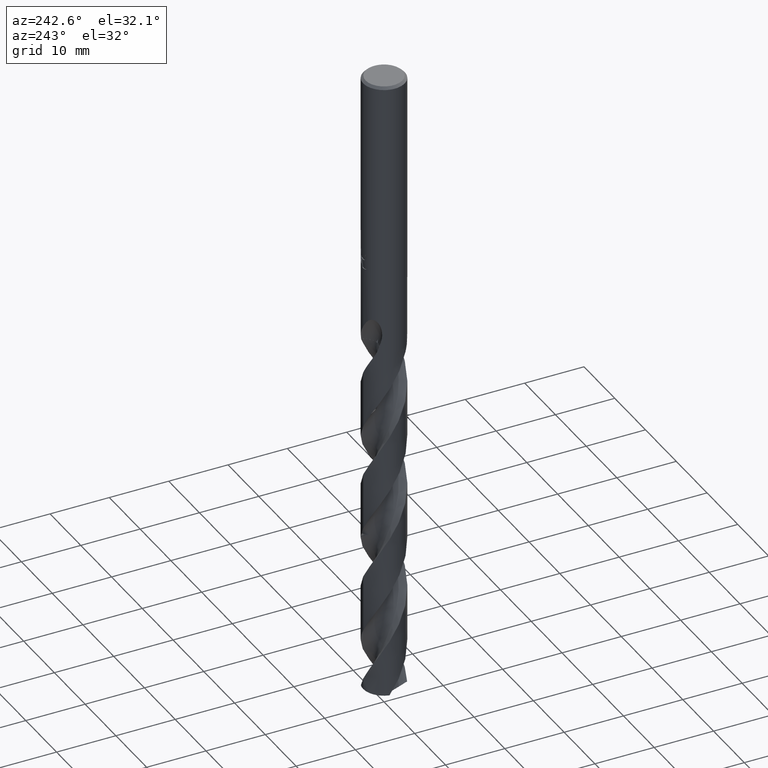
[diagram: clean part render]
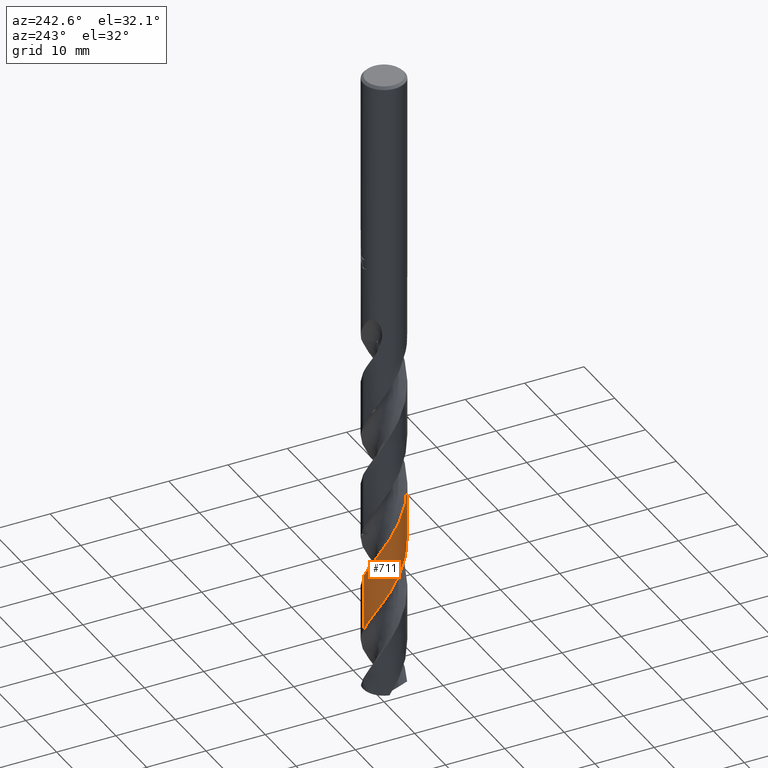
[diagram: same view with one face highlighted and labeled with its STEP entity id]
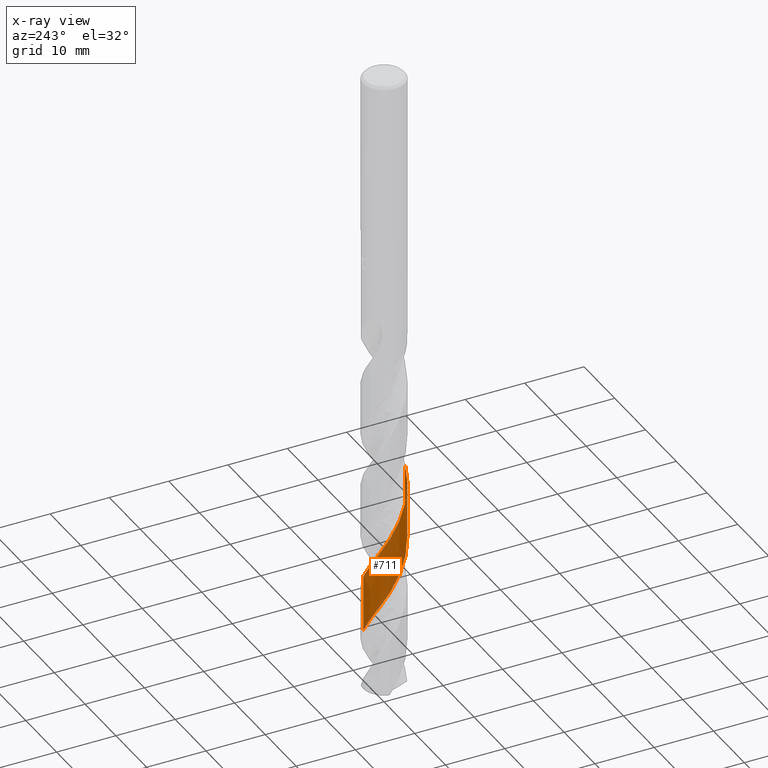
[diagram: x-ray of the same camera — body ghosted, the highlighted face saturated]
A machine part, auxiliary view. The second image highlights one B-rep face of the part: STEP entity #711.
The next image is the same camera in x-ray: the body ghosted, the highlighted face saturated — about 0% of this face is hidden behind the body in this view.
In plain terms, the highlighted conical surface has half-angle 0 deg.
Its self-contained STEP definition (entity closure, byte-faithful):
#299=VERTEX_POINT('',#802);
#345=VERTEX_POINT('',#852);
#393=VERTEX_POINT('',#905);
#415=VERTEX_POINT('',#928);
#501=EDGE_CURVE('',#393,#345,#1019,.T.);
#641=EDGE_CURVE('',#299,#393,#1173,.T.);
#677=EDGE_CURVE('',#415,#299,#1212,.T.);
#711=ADVANCED_FACE('',(#1248),#1249,.T.);
#751=EDGE_CURVE('',#345,#415,#1294,.T.);
#802=CARTESIAN_POINT('',(-7.40526495764295E-013,-3.49995292986779,-78.9526619385507));
#852=CARTESIAN_POINT('',(-1.13165313051398E-014,3.49996705519628,-87.4798293892618));
#905=CARTESIAN_POINT('',(-6.94785308113293E-013,-3.49993719329914,-69.4528222599181));
#928=CARTESIAN_POINT('',(-1.70896919966986E-014,3.49998279099656,-96.9792052148506));
#1019=B_SPLINE_CURVE_WITH_KNOTS('',3,(#3660,#3661,#3662,#3663,#3664,#3665,#3666,#3667,#3668,#3669,#3670,#3671,#3672,#3673,#3674,#3675,#3676,#3677,#3678,#3679,#3680,#3681,#3682,#3683,#3684,#3685,#3686,#3687,#3688,#3689,#3690,#3691,#3692,#3693,#3694,#3695,#3696,#3697,#3698,#3699,#3700,#3701,#3702,#3703,#3704,#3705,#3706,#3707,#3708,#3709,#3710,#3711,#3712,#3713,#3714,#3715,#3716,#3717,#3718,#3719,#3720,#3721,#3722,#3723,#3724,#3725,#3726,#3727,#3728,#3729,#3730,#3731,#3732,#3733,#3734,#3735,#3736,#3737,#3738,#3739,#3740,#3741,#3742,#3743,#3744,#3745,#3746,#3747,#3748,#3749,#3750,#3751,#3752,#3753,#3754,#3755,#3756,#3757,#3758,#3759,#3760,#3761,#3762,#3763,#3764,#3765,#3766,#3767,#3768,#3769,#3770,#3771,#3772,#3773,#3774,#3775,#3776,#3777,#3778,#3779,#3780,#3781,#3782,#3783,#3784,#3785,#3786,#3787,#3788,#3789,#3790,#3791,#3792,#3793,#3794,#3795,#3796,#3797,#3798,#3799,#3800,#3801,#3802,#3803,#3804,#3805,#3806,#3807,#3808,#3809,#3810,#3811,#3812,#3813,#3814,#3815,#3816,#3817,#3818,#3819),.UNSPECIFIED.,.F.,.F.,(4,2,2,2,2,2,2,2,2,2,2,2,2,2,2,2,2,2,2,2,2,2,2,2,2,2,2,2,2,2,2,2,2,2,2,2,2,2,2,2,2,2,2,2,2,2,2,2,2,2,2,2,2,2,2,2,2,2,2,2,2,2,2,2,2,2,2,2,2,2,2,2,2,2,2,2,2,2,2,4),(0.0,0.176609316957162,0.265826449095525,0.287732094775961,0.295246023859424,0.297832388771136,0.748636260234133,0.850870348794659,0.906132694335891,0.952146596698889,1.00624080437429,1.10313529965433,1.24015239958164,1.8390544293249,2.23477341737748,2.91002897189935,3.95445716626407,4.90334203578638,6.56132611102956,6.86253939397317,7.95088236907743,8.50504028353946,9.18887822470825,10.2735750849254,10.8875113506585,11.5008710652023,12.8761996900154,14.1562507725252,15.3644091370383,15.9466348982096,17.3195595338461,18.5995675120316,19.8077483179398,20.3898289084587,21.7752115068588,22.5443483954074,23.6950434977329,24.9099583517567,26.456509972061,27.0450889833506,28.4193197987341,29.6987878558288,30.906727307598,31.4867359319988,32.861120073602,34.1403219908385,35.3481647096555,35.9286423653618,37.3156850023539,38.0812130531543,39.2330383672182,40.4471828044986,41.9965769960484,42.5820560976831,43.9593531619333,44.7397702126562,46.0134690650328,47.018507663538,48.3919631397232,49.6705130925328,50.8776111264067,51.4584760410521,52.8436841585541,53.610651662213,54.7633284493473,55.9765861839157,57.5294332465751,58.1112609126017,59.4908166449692,60.265363984071,61.5406964547693,62.4820838938612,63.6294736531188,65.0067055816141,66.0386577240808,66.4284552027329,66.7670302553421,67.9606912834661,68.5588105373169,69.1564998714004),.UNSPECIFIED.);
#1173=LINE('',#7154,#7155);
#1212=B_SPLINE_CURVE_WITH_KNOTS('',3,(#7800,#7801,#7802,#7803,#7804,#7805,#7806,#7807,#7808,#7809,#7810,#7811,#7812,#7813,#7814,#7815,#7816,#7817,#7818,#7819,#7820,#7821,#7822,#7823,#7824,#7825,#7826,#7827,#7828,#7829,#7830,#7831,#7832,#7833,#7834,#7835,#7836,#7837,#7838,#7839,#7840,#7841,#7842,#7843,#7844,#7845,#7846,#7847,#7848,#7849,#7850,#7851,#7852,#7853,#7854,#7855,#7856,#7857,#7858,#7859,#7860,#7861,#7862,#7863,#7864,#7865,#7866,#7867,#7868,#7869,#7870,#7871,#7872,#7873,#7874,#7875,#7876,#7877,#7878,#7879,#7880,#7881,#7882,#7883,#7884,#7885,#7886,#7887,#7888,#7889,#7890,#7891,#7892,#7893,#7894,#7895,#7896,#7897,#7898,#7899,#7900,#7901,#7902,#7903,#7904,#7905,#7906,#7907,#7908,#7909,#7910,#7911,#7912,#7913,#7914,#7915,#7916,#7917,#7918,#7919,#7920,#7921,#7922,#7923,#7924,#7925,#7926,#7927,#7928,#7929,#7930,#7931,#7932,#7933,#7934,#7935,#7936,#7937,#7938,#7939,#7940,#7941,#7942,#7943,#7944,#7945,#7946,#7947,#7948,#7949,#7950,#7951,#7952,#7953,#7954,#7955,#7956,#7957,#7958,#7959),.UNSPECIFIED.,.F.,.F.,(4,2,2,2,2,2,2,2,2,2,2,2,2,2,2,2,2,2,2,2,2,2,2,2,2,2,2,2,2,2,2,2,2,2,2,2,2,2,2,2,2,2,2,2,2,2,2,2,2,2,2,2,2,2,2,2,2,2,2,2,2,2,2,2,2,2,2,2,2,2,2,2,2,2,2,2,2,2,2,4),(0.0,1.07297477616406,2.06550706622629,2.99060471057518,4.07755392860636,4.57572591207342,5.08493819379805,6.3493469404932,6.85291868082329,7.36150307210415,8.61578232791794,9.1838712705761,9.66967033047083,10.897758883202,11.4661827206003,11.8722335209645,13.0137118486045,13.5672330832487,14.692723902993,15.7313889931295,16.8461279105255,17.9748675286975,19.0859248474266,20.2140851764052,21.2904833798785,22.4171898578372,23.4622180488547,24.4419215006319,24.9900358818374,26.0705829016986,27.2037418258995,28.3242688896975,29.4554798806933,30.324832423727,31.6336796244901,32.5497885149773,34.4738231940705,34.6315123102163,36.8074749238068,36.9542742226299,39.1082952184604,39.2546689706105,41.4155157245676,41.4862538052461,43.4445764033497,43.9472462340155,45.0774984925308,45.6485749997113,46.7321982254105,47.8403008509796,48.9592979340731,50.0919140714858,50.9540812142249,52.1604653983318,52.6431117868114,53.027771926906,54.1648913279685,54.7369880898384,55.855084130908,56.990642222901,58.111319783219,59.2460194138756,60.3693931883418,61.5038727860214,62.6081083348537,64.0419435092109,64.7280627482917,66.1907139131353,66.9756270845256,68.4902848137052,69.3452126537487,69.6635704467222,69.9654451049739,70.1298565927482,70.2234114604124,70.3092630549788,70.4212259947623,70.6602536849387,70.9851925573652,71.51794366539),.UNSPECIFIED.);
#1248=FACE_OUTER_BOUND('',#8017,.T.);
#1249=CONICAL_SURFACE('',#8018,3.49995,1.65650886605269E-006);
#1294=LINE('',#8562,#8563);
#3660=CARTESIAN_POINT('',(-2.43269998356806,2.51620167274488,-47.005));
#3661=CARTESIAN_POINT('',(-2.41175347687883,2.53645317468293,-47.0561543802589));
#3662=CARTESIAN_POINT('',(-2.39047482509686,2.55652070581399,-47.1073909388611));
#3663=CARTESIAN_POINT('',(-2.35785386554595,2.58651280433652,-47.1844360545406));
#3664=CARTESIAN_POINT('',(-2.34681818972322,2.59653054929769,-47.2102522743538));
#3665=CARTESIAN_POINT('',(-2.33293330267143,2.60897269699269,-47.2423965885668));
#3666=CARTESIAN_POINT('',(-2.33019013892071,2.61142305365317,-47.24873103283));
#3667=CARTESIAN_POINT('',(-2.32649738138319,2.61471117371272,-47.2572362359017));
#3668=CARTESIAN_POINT('',(-2.32555349705209,2.61555071581357,-47.2594082770913));
#3669=CARTESIAN_POINT('',(-2.32428371145247,2.61667890074603,-47.2623276737815));
#3670=CARTESIAN_POINT('',(-2.3239584720212,2.616967762507,-47.2630752111538));
#3671=CARTESIAN_POINT('',(-2.26692843877424,2.66760002969327,-47.3941140750664));
#3672=CARTESIAN_POINT('',(-2.20912034699077,2.71574293485956,-47.519844829413));
#3673=CARTESIAN_POINT('',(-2.13304393886631,2.77484207642796,-47.6768906580471));
#3674=CARTESIAN_POINT('',(-2.11886076571277,2.78568817989498,-47.7058459460353));
#3675=CARTESIAN_POINT('',(-2.09679386022125,2.80229515315963,-47.7504481469319));
#3676=CARTESIAN_POINT('',(-2.08901674080607,2.80809764980555,-47.7660834238604));
#3677=CARTESIAN_POINT('',(-2.07469638816977,2.81868934289746,-47.7947307043134));
#3678=CARTESIAN_POINT('',(-2.06816739664195,2.82348344273392,-47.8077379843248));
#3679=CARTESIAN_POINT('',(-2.05391097159921,2.83387549175227,-47.8360318718216));
#3680=CARTESIAN_POINT('',(-2.04617811527693,2.83946407140733,-47.8513102917898));
#3681=CARTESIAN_POINT('',(-2.02450869813871,2.85498993938282,-47.893952431549));
#3682=CARTESIAN_POINT('',(-2.01052000141599,2.8648583841502,-47.9212830625568));
#3683=CARTESIAN_POINT('',(-1.97654844571432,2.88845195267198,-47.9872868857329));
#3684=CARTESIAN_POINT('',(-1.95665480739979,2.90196895136061,-48.0257169155291));
#3685=CARTESIAN_POINT('',(-1.8461528442374,2.97534655074654,-48.2386477456232));
#3686=CARTESIAN_POINT('',(-1.75409397108904,3.03047963886713,-48.4132887175796));
#3687=CARTESIAN_POINT('',(-1.5984373962573,3.11436458080042,-48.7027972766793));
#3688=CARTESIAN_POINT('',(-1.5355944543861,3.14582173466202,-48.8181984437904));
#3689=CARTESIAN_POINT('',(-1.36330162140425,3.22568907935567,-49.130291624133));
#3690=CARTESIAN_POINT('',(-1.25213737201075,3.27044814935813,-49.327226953951));
#3691=CARTESIAN_POINT('',(-0.963644595261508,3.36972652324523,-49.8282486361788));
#3692=CARTESIAN_POINT('',(-0.783862308587323,3.41604184972635,-50.1307229178127));
#3693=CARTESIAN_POINT('',(-0.434911295720396,3.47687029648022,-50.7107712415498));
#3694=CARTESIAN_POINT('',(-0.267091563460321,3.49375465985021,-50.987098536721));
#3695=CARTESIAN_POINT('',(0.194999250528401,3.50681795344031,-51.7459933602395));
#3696=CARTESIAN_POINT('',(0.488883827752617,3.47806849146037,-52.2253167199682));
#3697=CARTESIAN_POINT('',(0.827988050650087,3.40097949418845,-52.7953930811924));
#3698=CARTESIAN_POINT('',(0.879829813884741,3.38793793300842,-52.8830270256743));
#3699=CARTESIAN_POINT('',(1.11746546149402,3.32233739376537,-53.2874419157705));
#3700=CARTESIAN_POINT('',(1.29906388426685,3.25562945906313,-53.6039661912791));
#3701=CARTESIAN_POINT('',(1.56346273212086,3.13283263636992,-54.0819593764143));
#3702=CARTESIAN_POINT('',(1.65090514305436,3.08764969791146,-54.243118818409));
#3703=CARTESIAN_POINT('',(1.84179057308766,2.97858070576308,-54.6033197904873));
#3704=CARTESIAN_POINT('',(1.94398600336964,2.91290914494796,-54.8020013786641));
#3705=CARTESIAN_POINT('',(2.19887611716496,2.72972579507364,-55.3167258019103));
#3706=CARTESIAN_POINT('',(2.34569466507415,2.60464902193666,-55.6321778649721));
#3707=CARTESIAN_POINT('',(2.55834717381075,2.39084592847523,-56.1265488297567));
#3708=CARTESIAN_POINT('',(2.63156874303276,2.31000898387067,-56.3050858648868));
#3709=CARTESIAN_POINT('',(2.77018609017299,2.14180914293974,-56.6622258641046));
#3710=CARTESIAN_POINT('',(2.83547210122525,2.05459495604475,-56.8405721113634));
#3711=CARTESIAN_POINT('',(3.03356947261061,1.76251208808823,-57.4194713650773));
#3712=CARTESIAN_POINT('',(3.14911918946605,1.5466531997457,-57.8189758221854));
#3713=CARTESIAN_POINT('',(3.32704366514641,1.10990863247953,-58.591769932708));
#3714=CARTESIAN_POINT('',(3.39206533446229,0.8915914642033,-58.9634480112951));
#3715=CARTESIAN_POINT('',(3.47642245029734,0.458152972679807,-59.6878084857337));
#3716=CARTESIAN_POINT('',(3.49797386794858,0.244289700186688,-60.0386465226703));
#3717=CARTESIAN_POINT('',(3.50067421331958,-0.0736973609765746,-60.5596819263423));
#3718=CARTESIAN_POINT('',(3.49696876821771,-0.177050130840127,-60.729010963468));
#3719=CARTESIAN_POINT('',(3.46920334901063,-0.522942753907589,-61.2981920360522));
#3720=CARTESIAN_POINT('',(3.42438503771326,-0.763230611072699,-61.6970352235357));
#3721=CARTESIAN_POINT('',(3.29016174024695,-1.21490829654455,-62.4691828710359));
#3722=CARTESIAN_POINT('',(3.20434348659599,-1.42592929911881,-62.8408838705583));
#3723=CARTESIAN_POINT('',(2.9990516863863,-1.8169093324836,-63.565301780019));
#3724=CARTESIAN_POINT('',(2.88209190737557,-1.99727277028515,-63.9161768815367));
#3725=CARTESIAN_POINT('',(2.68530489932635,-2.24707144828725,-64.4372216047361));
#3726=CARTESIAN_POINT('',(2.61778137058986,-2.32538155328725,-64.6065249587007));
#3727=CARTESIAN_POINT('',(2.37825647337112,-2.57951048337814,-65.1793375921104));
#3728=CARTESIAN_POINT('',(2.19113585412008,-2.74025516722603,-65.5818025227725));
#3729=CARTESIAN_POINT('',(1.87620498909565,-2.95770915618335,-66.208931247108));
#3730=CARTESIAN_POINT('',(1.75937016414794,-3.02866077855063,-66.4324493374421));
#3731=CARTESIAN_POINT('',(1.45821291201453,-3.18824052392186,-66.9914355000141));
#3732=CARTESIAN_POINT('',(1.26963202704695,-3.26792589460329,-67.326107362255));
#3733=CARTESIAN_POINT('',(0.869789921815956,-3.39699440378423,-68.0148130119236));
#3734=CARTESIAN_POINT('',(0.658813426519814,-3.4441292076808,-68.3673274345739));
#3735=CARTESIAN_POINT('',(0.172579473048913,-3.50644353415302,-69.17147583139));
#3736=CARTESIAN_POINT('',(-0.103021814856283,-3.50919531975958,-69.6203580061644));
#3737=CARTESIAN_POINT('',(-0.48017578375058,-3.46841986782462,-70.2419258288089));
#3738=CARTESIAN_POINT('',(-0.583544394335541,-3.45253052886276,-70.4131529751583));
#3739=CARTESIAN_POINT('',(-0.925264401788666,-3.3842268495533,-70.9847512914819));
#3740=CARTESIAN_POINT('',(-1.15895592060618,-3.3114981864795,-71.3841023645794));
#3741=CARTESIAN_POINT('',(-1.59206304091504,-3.12515677350633,-72.1567254612999));
#3742=CARTESIAN_POINT('',(-1.79155863408711,-3.0152136787304,-72.5283921645052));
#3743=CARTESIAN_POINT('',(-2.15580461797082,-2.76552031464065,-73.2528159513011));
#3744=CARTESIAN_POINT('',(-2.32124456730254,-2.62821255952877,-73.6037312560034));
#3745=CARTESIAN_POINT('',(-2.54604708199659,-2.40372218502797,-74.1242707932152));
#3746=CARTESIAN_POINT('',(-2.61569014057088,-2.32774296651161,-74.2930261159941));
#3747=CARTESIAN_POINT('',(-2.83865937496481,-2.06184067873635,-74.8622191740045));
#3748=CARTESIAN_POINT('',(-2.97553452622568,-1.85888724164996,-75.2616442740125));
#3749=CARTESIAN_POINT('',(-3.19691615639314,-1.44257718827464,-76.0342966390264));
#3750=CARTESIAN_POINT('',(-3.28379319873845,-1.23204259548018,-76.4059200977482));
#3751=CARTESIAN_POINT('',(-3.41181300030688,-0.809427188214244,-77.1303003888474));
#3752=CARTESIAN_POINT('',(-3.45501660567954,-0.598817311861795,-77.4812185804774));
#3753=CARTESIAN_POINT('',(-3.49001884706417,-0.282963315283491,-78.0019109634153));
#3754=CARTESIAN_POINT('',(-3.49683789948652,-0.180029678718117,-78.1708188401937));
#3755=CARTESIAN_POINT('',(-3.50452307558494,0.169258254266956,-78.7438820514907));
#3756=CARTESIAN_POINT('',(-3.48393479741709,0.415482676734702,-79.1469883629072));
#3757=CARTESIAN_POINT('',(-3.41206661856233,0.791193949050992,-79.7738048253917));
#3758=CARTESIAN_POINT('',(-3.37874921012454,0.923158315091427,-79.9963679720614));
#3759=CARTESIAN_POINT('',(-3.27631675796848,1.24791222662192,-80.5548598019763));
#3760=CARTESIAN_POINT('',(-3.19777910596635,1.43728501205592,-80.8899943899089));
#3761=CARTESIAN_POINT('',(-3.00334520185092,1.81001660870528,-81.5790843986515));
#3762=CARTESIAN_POINT('',(-2.88612733687239,1.9915990673702,-81.9315206839968));
#3763=CARTESIAN_POINT('',(-2.58307399976971,2.37763660252326,-82.7366003202335));
#3764=CARTESIAN_POINT('',(-2.38815489366422,2.57337896130752,-83.1864788486121));
#3765=CARTESIAN_POINT('',(-2.09062055482682,2.80888985673244,-83.8082242717237));
#3766=CARTESIAN_POINT('',(-2.00621735009745,2.86977951715802,-83.9786222174934));
#3767=CARTESIAN_POINT('',(-1.71469156372962,3.06094929616485,-84.550442904971));
#3768=CARTESIAN_POINT('',(-1.49654022797196,3.17333256784199,-84.9508385629269));
#3769=CARTESIAN_POINT('',(-1.13908378181983,3.31232212307518,-85.5793096986341));
#3770=CARTESIAN_POINT('',(-1.00696812438172,3.35484506213587,-85.806245107761));
#3771=CARTESIAN_POINT('',(-0.653591359405398,3.44583393580127,-86.4047203656042));
#3772=CARTESIAN_POINT('',(-0.429444875220092,3.48088988992265,-86.7752528348976));
#3773=CARTESIAN_POINT('',(-0.0250874268026469,3.50443337339035,-87.4390745540273));
#3774=CARTESIAN_POINT('',(0.153729059618635,3.50114530077826,-87.7311198558711));
#3775=CARTESIAN_POINT('',(0.574371927606005,3.46112860129982,-88.4241905961481));
#3776=CARTESIAN_POINT('',(0.814288221301899,3.41267378887534,-88.8235556757133));
#3777=CARTESIAN_POINT('',(1.26416916770178,3.2715956072034,-89.5961529782406));
#3778=CARTESIAN_POINT('',(1.47383867586516,3.18263816972693,-89.9677805154407));
#3779=CARTESIAN_POINT('',(1.86166989748613,2.97152736410667,-90.6921344986138));
#3780=CARTESIAN_POINT('',(2.04026913526751,2.85187186914525,-91.0430216884848));
#3781=CARTESIAN_POINT('',(2.28700626770797,2.65143072856439,-91.5638836065827));
#3782=CARTESIAN_POINT('',(2.36421030594268,2.58282371878614,-91.7329922222691));
#3783=CARTESIAN_POINT('',(2.61480442776378,2.33948485363641,-92.3059351598779));
#3784=CARTESIAN_POINT('',(2.77285955482456,2.14982286346735,-92.7087231337911));
#3785=CARTESIAN_POINT('',(2.98551665052056,1.83169960099087,-93.3357547002153));
#3786=CARTESIAN_POINT('',(3.05458406386631,1.71403916951257,-93.5588523772368));
#3787=CARTESIAN_POINT('',(3.20981011334744,1.41029046692188,-94.1183055957767));
#3788=CARTESIAN_POINT('',(3.28685129789632,1.22002134052361,-94.4538621362709));
#3789=CARTESIAN_POINT('',(3.40992116722374,0.817813675418418,-95.1433034391577));
#3790=CARTESIAN_POINT('',(3.45381250961202,0.606230837749205,-95.4956695063974));
#3791=CARTESIAN_POINT('',(3.50886312964144,0.117825053867551,-96.3019202624762));
#3792=CARTESIAN_POINT('',(3.50724993125119,-0.159178351391461,-96.7530239159992));
#3793=CARTESIAN_POINT('',(3.46026213681927,-0.535888517806687,-97.3750376639619));
#3794=CARTESIAN_POINT('',(3.44291386901985,-0.637903371443929,-97.5444657145041));
#3795=CARTESIAN_POINT('',(3.36932339393348,-0.978598279838438,-98.1161802851572));
#3796=CARTESIAN_POINT('',(3.29250617871425,-1.21222663614502,-98.5174346840844));
#3797=CARTESIAN_POINT('',(3.13533371368841,-1.5615893660643,-99.1451811978874));
#3798=CARTESIAN_POINT('',(3.07147358137449,-1.68371896277323,-99.3705316952438));
#3799=CARTESIAN_POINT('',(2.88391569321246,-1.99607778504511,-99.9680853405643));
#3800=CARTESIAN_POINT('',(2.74858427582339,-2.1786795508758,-100.339284876803));
#3801=CARTESIAN_POINT('',(2.48423477112272,-2.47113989736015,-100.985379467631));
#3802=CARTESIAN_POINT('',(2.36323921710751,-2.58708940736601,-101.25911951593));
#3803=CARTESIAN_POINT('',(2.07745681816972,-2.82412953172364,-101.868071525729));
#3804=CARTESIAN_POINT('',(1.90934845064633,-2.94040258905455,-102.20220434127));
#3805=CARTESIAN_POINT('',(1.51919282876011,-3.16259282367821,-102.938133029395));
#3806=CARTESIAN_POINT('',(1.29429190046658,-3.26108493602411,-103.338071905844));
#3807=CARTESIAN_POINT('',(0.886263841774338,-3.39089009221512,-104.040545970038));
#3808=CARTESIAN_POINT('',(0.707324348544699,-3.43268756702281,-104.341033094555));
#3809=CARTESIAN_POINT('',(0.457327311410318,-3.47068117509209,-104.755482877458));
#3810=CARTESIAN_POINT('',(0.388486423540657,-3.47905982492451,-104.869071275173));
#3811=CARTESIAN_POINT('',(0.259460290771765,-3.49088544749067,-105.081383572641));
#3812=CARTESIAN_POINT('',(0.199365170793884,-3.49483235750157,-105.180033511251));
#3813=CARTESIAN_POINT('',(-0.0728948054629866,-3.50567019753704,-105.626750862683));
#3814=CARTESIAN_POINT('',(-0.285373596552007,-3.49480167323034,-105.974376631684));
#3815=CARTESIAN_POINT('',(-0.600918004730843,-3.44966801777981,-106.496729237955));
#3816=CARTESIAN_POINT('',(-0.705520937335739,-3.42980458013343,-106.670954913798));
#3817=CARTESIAN_POINT('',(-0.91254125391921,-3.38061761735309,-107.019531803393));
#3818=CARTESIAN_POINT('',(-1.01475682806621,-3.35135042177822,-107.193573439807));
#3819=CARTESIAN_POINT('',(-1.11544004535042,-3.31749807915975,-107.367923196458));
#7154=CARTESIAN_POINT('',(4.28612172425868E-016,-3.49995,-77.1839615982288));
#7155=VECTOR('',#8984,1.0);
#7800=CARTESIAN_POINT('',(3.4004612664133,-0.828772089070842,-107.367923196458));
#7801=CARTESIAN_POINT('',(3.44451882057282,-0.648001308628571,-107.062472239852));
#7802=CARTESIAN_POINT('',(3.47410183399226,-0.464085840985926,-106.75534875078));
#7803=CARTESIAN_POINT('',(3.5026330290207,-0.106285966835573,-106.166707198659));
#7804=CARTESIAN_POINT('',(3.5036204151878,0.0664797805284095,-105.885077141134));
#7805=CARTESIAN_POINT('',(3.48087740267322,0.399187817059056,-105.338797540397));
#7806=CARTESIAN_POINT('',(3.45886909629401,0.558566806062133,-105.074417316504));
#7807=CARTESIAN_POINT('',(3.38742338475055,0.900525135045183,-104.501309641534));
#7808=CARTESIAN_POINT('',(3.33392043576363,1.08197721682228,-104.193210854177));
#7809=CARTESIAN_POINT('',(3.23480094331171,1.33922651830633,-103.742069252371));
#7810=CARTESIAN_POINT('',(3.20069227606294,1.41880209094822,-103.600377402351));
#7811=CARTESIAN_POINT('',(3.12592051264341,1.57682687321303,-103.313431755892));
#7812=CARTESIAN_POINT('',(3.08517500040249,1.65511919080785,-103.168060630079));
#7813=CARTESIAN_POINT('',(2.93323457162708,1.92197968973369,-102.663277776144));
#7814=CARTESIAN_POINT('',(2.80715982521874,2.10190709012381,-102.305833915675));
#7815=CARTESIAN_POINT('',(2.6081001280541,2.33567922029264,-101.803378997326));
#7816=CARTESIAN_POINT('',(2.54898634247433,2.40004548513313,-101.660367311882));
#7817=CARTESIAN_POINT('',(2.4255959408881,2.52471445374199,-101.372488366932));
#7818=CARTESIAN_POINT('',(2.36134913204559,2.58489715728896,-101.227516232373));
#7819=CARTESIAN_POINT('',(2.13119223548619,2.78477719348663,-100.726506952483));
#7820=CARTESIAN_POINT('',(1.95435218267603,2.91165710951823,-100.372363266445));
#7821=CARTESIAN_POINT('',(1.68150628721262,3.07118164900762,-99.8551631784905));
#7822=CARTESIAN_POINT('',(1.59449582592083,3.11723481942914,-99.6940858858754));
#7823=CARTESIAN_POINT('',(1.42990887218793,3.19567386183489,-99.3947067165167));
#7824=CARTESIAN_POINT('',(1.35287492599377,3.2290378493247,-99.2564257991139));
#7825=CARTESIAN_POINT('',(1.07699339814689,3.3369207446532,-98.7697070428363));
#7826=CARTESIAN_POINT('',(0.872439406785284,3.39618172874603,-98.4231354082738));
#7827=CARTESIAN_POINT('',(0.566718194339531,3.45520282598046,-97.9136150070351));
#7828=CARTESIAN_POINT('',(0.469363806696207,3.46976118973943,-97.7525500061294));
#7829=CARTESIAN_POINT('',(0.301851021945437,3.48764948208077,-97.4759113690049));
#7830=CARTESIAN_POINT('',(0.231950650824635,3.49299140283572,-97.3604496649329));
#7831=CARTESIAN_POINT('',(-0.0347109641638858,3.50534524225633,-96.9215476998329));
#7832=CARTESIAN_POINT('',(-0.232140440156735,3.49786043128968,-96.5995714146548));
#7833=CARTESIAN_POINT('',(-0.523339734645339,3.46195977534415,-96.1195782149224));
#7834=CARTESIAN_POINT('',(-0.617833880104701,3.44634572848994,-95.9629866172683));
#7835=CARTESIAN_POINT('',(-0.9019275813959,3.38736153669094,-95.4872273459255));
#7836=CARTESIAN_POINT('',(-1.08874643390349,3.33202653397519,-95.1670362012916));
#7837=CARTESIAN_POINT('',(-1.43761607221353,3.19615376249387,-94.5537619837899));
#7838=CARTESIAN_POINT('',(-1.59975663317443,3.11815634507125,-94.260713668643));
#7839=CARTESIAN_POINT('',(-1.92198532788695,2.93137955356626,-93.6504985123775));
#7840=CARTESIAN_POINT('',(-2.08036018387744,2.82118401450093,-93.3333571225514));
#7841=CARTESIAN_POINT('',(-2.37939451780324,2.57417771234179,-92.6976146003187));
#7842=CARTESIAN_POINT('',(-2.51920811697519,2.43752418072241,-92.3794262738173));
#7843=CARTESIAN_POINT('',(-2.77264424906603,2.14457118878255,-91.7449130401046));
#7844=CARTESIAN_POINT('',(-2.8860500824376,1.98931818231046,-91.4289096157164));
#7845=CARTESIAN_POINT('',(-3.08785792735758,1.6591990272285,-90.7945577763752));
#7846=CARTESIAN_POINT('',(-3.17548919748581,1.48462942410735,-90.4766301216135));
#7847=CARTESIAN_POINT('',(-3.31746525966586,1.1308675825856,-89.8523575741224));
#7848=CARTESIAN_POINT('',(-3.37281682401902,0.953113294138951,-89.5463694404435));
#7849=CARTESIAN_POINT('',(-3.45668716650357,0.582174819608566,-88.9225322103751));
#7850=CARTESIAN_POINT('',(-3.48371911004128,0.389115004392858,-88.6051673609202));
#7851=CARTESIAN_POINT('',(-3.50459664741103,0.0143173714210434,-87.9906232100092));
#7852=CARTESIAN_POINT('',(-3.50064965617787,-0.166299442405522,-87.6938926535967));
#7853=CARTESIAN_POINT('',(-3.46620438378156,-0.513513551719474,-87.1210741319024));
#7854=CARTESIAN_POINT('',(-3.43738500609264,-0.680286345990852,-86.8450332917964));
#7855=CARTESIAN_POINT('',(-3.37369920569613,-0.936416670916594,-86.4132499700667));
#7856=CARTESIAN_POINT('',(-3.34715162050458,-1.02726135947191,-86.258492694194));
#7857=CARTESIAN_POINT('',(-3.25752640721051,-1.29344307747817,-85.7979155520389));
#7858=CARTESIAN_POINT('',(-3.18406231832559,-1.46502330043166,-85.4911270161887));
#7859=CARTESIAN_POINT('',(-3.00606312238251,-1.8032178656355,-84.8650349809181));
#7860=CARTESIAN_POINT('',(-2.90061981816471,-1.96834357733449,-84.5462019170034));
#7861=CARTESIAN_POINT('',(-2.66463346634148,-2.27746462975361,-83.9087794615286));
#7862=CARTESIAN_POINT('',(-2.5348464219755,-2.42109312612339,-83.5905995465171));
#7863=CARTESIAN_POINT('',(-2.25127219230554,-2.68693529998903,-82.9537155350821));
#7864=CARTESIAN_POINT('',(-2.09790765568772,-2.80831120727655,-82.6354161413978));
#7865=CARTESIAN_POINT('',(-1.81021968002898,-2.99922035759934,-82.0696100570126));
#7866=CARTESIAN_POINT('',(-1.68018322605789,-3.07394029557796,-81.8228662146863));
#7867=CARTESIAN_POINT('',(-1.34359003558924,-3.23964238868019,-81.2069907204183));
#7868=CARTESIAN_POINT('',(-1.13205932151782,-3.31950438377579,-80.8395128089721));
#7869=CARTESIAN_POINT('',(-0.761574490775001,-3.41974599808942,-80.2109488324398));
#7870=CARTESIAN_POINT('',(-0.606621458218968,-3.45058008667543,-79.9512846975913));
#7871=CARTESIAN_POINT('',(-0.122355317174318,-3.51342275147521,-79.1492912642405));
#7872=CARTESIAN_POINT('',(0.209756111256972,-3.50923771885139,-78.6139278992054));
#7873=CARTESIAN_POINT('',(0.562880198505391,-3.454498277071,-78.0260769886727));
#7874=CARTESIAN_POINT('',(0.589541773233113,-3.45004813305496,-77.9815552305597));
#7875=CARTESIAN_POINT('',(0.983783796724115,-3.37953770184653,-77.3226222532682));
#7876=CARTESIAN_POINT('',(1.3382264430259,-3.25545725243806,-76.7196255478368));
#7877=CARTESIAN_POINT('',(1.68846610602977,-3.06583639731519,-76.0641647770476));
#7878=CARTESIAN_POINT('',(1.71046417374632,-3.05361844488307,-76.0227243771539));
#7879=CARTESIAN_POINT('',(2.0541160678763,-2.8578545954195,-75.3721196208762));
#7880=CARTESIAN_POINT('',(2.34447587911751,-2.62485650085071,-74.7741602499258));
#7881=CARTESIAN_POINT('',(2.60980203198182,-2.33220489128227,-74.1240131160063));
#7882=CARTESIAN_POINT('',(2.62648175526837,-2.31340506862387,-74.0826239521668));
#7883=CARTESIAN_POINT('',(2.88694347093732,-2.01336382028724,-73.4290226275507));
#7884=CARTESIAN_POINT('',(3.08431853282833,-1.6955063167373,-72.8281799086899));
#7885=CARTESIAN_POINT('',(3.23267921084894,-1.34146388428855,-72.1963148741555));
#7886=CARTESIAN_POINT('',(3.23731904096476,-1.33022773790708,-72.1762957873695));
#7887=CARTESIAN_POINT('',(3.36903071637385,-1.0064825629358,-71.6010484062923));
#7888=CARTESIAN_POINT('',(3.4503749514805,-0.677183836312019,-71.0543304564372));
#7889=CARTESIAN_POINT('',(3.49173257803014,-0.254737537097222,-70.3575645074607));
#7890=CARTESIAN_POINT('',(3.49696078777985,-0.16830021656962,-70.2149409351679));
#7891=CARTESIAN_POINT('',(3.50352909986715,0.112773398653211,-69.75290458911));
#7892=CARTESIAN_POINT('',(3.49185070845779,0.307643604543598,-69.4348029338588));
#7893=CARTESIAN_POINT('',(3.44980159876724,0.59845770522774,-68.9540719172101));
#7894=CARTESIAN_POINT('',(3.43158085362381,0.695338519570143,-68.7928724375459));
#7895=CARTESIAN_POINT('',(3.36709921982072,0.973180236042751,-68.3249772186865));
#7896=CARTESIAN_POINT('',(3.31035090837317,1.15157786536613,-68.0173311502319));
#7897=CARTESIAN_POINT('',(3.16710142587908,1.50187075801945,-67.397447825156));
#7898=CARTESIAN_POINT('',(3.0802959044491,1.67268373603386,-67.0855575831709));
#7899=CARTESIAN_POINT('',(2.87875576697473,1.99989352427207,-66.455583845136));
#7900=CARTESIAN_POINT('',(2.76411242197473,2.15558142542978,-66.137797283735));
#7901=CARTESIAN_POINT('',(2.50851135164714,2.44849470044937,-65.5008684530805));
#7902=CARTESIAN_POINT('',(2.36784290612223,2.58477209132052,-65.1821335839876));
#7903=CARTESIAN_POINT('',(2.10139133975184,2.80282055113826,-64.6178641983797));
#7904=CARTESIAN_POINT('',(1.98050247638437,2.88949446981449,-64.3731199730337));
#7905=CARTESIAN_POINT('',(1.67824215776355,3.07834411466353,-63.7881230743186));
#7906=CARTESIAN_POINT('',(1.49236492943934,3.17264790535238,-63.448996384532));
#7907=CARTESIAN_POINT('',(1.22165919202156,3.28084955813281,-62.971752158492));
#7908=CARTESIAN_POINT('',(1.14331791388383,3.30895968637338,-62.8354538969941));
#7909=CARTESIAN_POINT('',(1.0010499386379,3.35436530871443,-62.5901715286221));
#7910=CARTESIAN_POINT('',(0.937492339092993,3.3726780597701,-62.4812237821224));
#7911=CARTESIAN_POINT('',(0.684251346631672,3.43794426227409,-62.0512299990319));
#7912=CARTESIAN_POINT('',(0.490961054472313,3.47086203447436,-61.7316516358532));
#7913=CARTESIAN_POINT('',(0.197253993721165,3.49575312123809,-61.2494371611293));
#7914=CARTESIAN_POINT('',(0.0987210069050134,3.49991690017667,-61.0882056136974));
#7915=CARTESIAN_POINT('',(-0.192263628992337,3.49993510528775,-60.6110586151665));
#7916=CARTESIAN_POINT('',(-0.384436979753589,3.48407753473507,-60.2941542055399));
#7917=CARTESIAN_POINT('',(-0.767580627315873,3.42031717965074,-59.6578865697346));
#7918=CARTESIAN_POINT('',(-0.957550327248306,3.37206090696107,-59.3389086228149));
#7919=CARTESIAN_POINT('',(-1.32487565098925,3.24521162638469,-58.7018432415601));
#7920=CARTESIAN_POINT('',(-1.50174646910494,3.16725382897555,-58.3841502024936));
#7921=CARTESIAN_POINT('',(-1.84327208891053,2.98161354372739,-57.747303709413));
#7922=CARTESIAN_POINT('',(-2.00692947262362,2.87399995017999,-57.428556891722));
#7923=CARTESIAN_POINT('',(-2.31298620238214,2.63381280168592,-56.7909550893702));
#7924=CARTESIAN_POINT('',(-2.45497966366536,2.50199085929835,-56.472520588386));
#7925=CARTESIAN_POINT('',(-2.71722089005836,2.2145724758723,-55.8349716183179));
#7926=CARTESIAN_POINT('',(-2.83663314865657,2.05939562850051,-55.5162795598916));
#7927=CARTESIAN_POINT('',(-3.04546539877328,1.7351431051393,-54.8841632434245));
#7928=CARTESIAN_POINT('',(-3.135181905481,1.567230827554,-54.5710905138063));
#7929=CARTESIAN_POINT('',(-3.30917683610583,1.1660820580246,-53.8544492894913));
#7930=CARTESIAN_POINT('',(-3.38316073187002,0.929781528626149,-53.4529145545718));
#7931=CARTESIAN_POINT('',(-3.45486317829193,0.572042166777631,-52.8542616820483));
#7932=CARTESIAN_POINT('',(-3.47218179820892,0.455258843013298,-52.6599939967355));
#7933=CARTESIAN_POINT('',(-3.50786405876722,0.0872041031302223,-52.0530920919385));
#7934=CARTESIAN_POINT('',(-3.50504380674233,-0.164987623991694,-51.6438864773816));
#7935=CARTESIAN_POINT('',(-3.45928002049009,-0.54856932951718,-51.0098461779519));
#7936=CARTESIAN_POINT('',(-3.43567344748867,-0.680869646923858,-50.7876883737998));
#7937=CARTESIAN_POINT('',(-3.34428075910566,-1.06418606322814,-50.139929714329));
#7938=CARTESIAN_POINT('',(-3.25666713224,-1.30793333084122,-49.7256060367118));
#7939=CARTESIAN_POINT('',(-3.07808057018216,-1.67217386505191,-49.0632728998671));
#7940=CARTESIAN_POINT('',(-3.00581301110214,-1.79860976664247,-48.8245901391388));
#7941=CARTESIAN_POINT('',(-2.89786554910286,-1.96330012752332,-48.490458595931));
#7942=CARTESIAN_POINT('',(-2.86784196612474,-2.00687478317342,-48.399625946643));
#7943=CARTESIAN_POINT('',(-2.80804362241586,-2.08965923772116,-48.2218297313214));
#7944=CARTESIAN_POINT('',(-2.77840322065405,-2.12888628662601,-48.135106676777));
#7945=CARTESIAN_POINT('',(-2.73186059414827,-2.18791036152499,-48.0005139906767));
#7946=CARTESIAN_POINT('',(-2.7209695081768,-2.20139488554513,-47.9687261369017));
#7947=CARTESIAN_POINT('',(-2.69865528300929,-2.22861686759046,-47.9068648614406));
#7948=CARTESIAN_POINT('',(-2.69039921056721,-2.23857865355129,-47.8845352139084));
#7949=CARTESIAN_POINT('',(-2.67423917375945,-2.2578528480597,-47.8419032158433));
#7950=CARTESIAN_POINT('',(-2.66636511875886,-2.26714768490051,-47.821593064939));
#7951=CARTESIAN_POINT('',(-2.64788530787267,-2.28872693283541,-47.7749935052231));
#7952=CARTESIAN_POINT('',(-2.63718232951739,-2.30105471859897,-47.7487774753532));
#7953=CARTESIAN_POINT('',(-2.60283321915412,-2.34004685421158,-47.667062341551));
#7954=CARTESIAN_POINT('',(-2.57832460068876,-2.36705773776603,-47.612193588016));
#7955=CARTESIAN_POINT('',(-2.51764716433439,-2.43174208828469,-47.4843556341209));
#7956=CARTESIAN_POINT('',(-2.48057902842206,-2.46962546870851,-47.4122336750683));
#7957=CARTESIAN_POINT('',(-2.37667952316995,-2.57076026861963,-47.2252549209079));
#7958=CARTESIAN_POINT('',(-2.30653607188699,-2.6341978136299,-47.1135779118216));
#7959=CARTESIAN_POINT('',(-2.23022149938216,-2.69729719009043,-47.005));
#8017=EDGE_LOOP('',(#9067,#9068,#9069,#9070));
#8018=AXIS2_PLACEMENT_3D('',#9071,#9072,#9073);
#8562=CARTESIAN_POINT('',(-4.28600029186258E-016,3.49995,-77.1839615982288));
#8563=VECTOR('',#9142,1.0);
#8984=DIRECTION('',(-2.02857128253029E-022,1.65650886605193E-006,0.999999999998628));
#9067=ORIENTED_EDGE('',*,*,#751,.T.);
#9068=ORIENTED_EDGE('',*,*,#677,.T.);
#9069=ORIENTED_EDGE('',*,*,#641,.T.);
#9070=ORIENTED_EDGE('',*,*,#501,.T.);
#9071=CARTESIAN_POINT('',(0.0,0.0,-77.1839615982287));
#9072=DIRECTION('',(0.0,-0.0,-1.0));
#9073=DIRECTION('',(0.0,1.0,0.0));
#9142=DIRECTION('',(-2.02857128253029E-022,1.65650886605193E-006,-0.999999999998628));